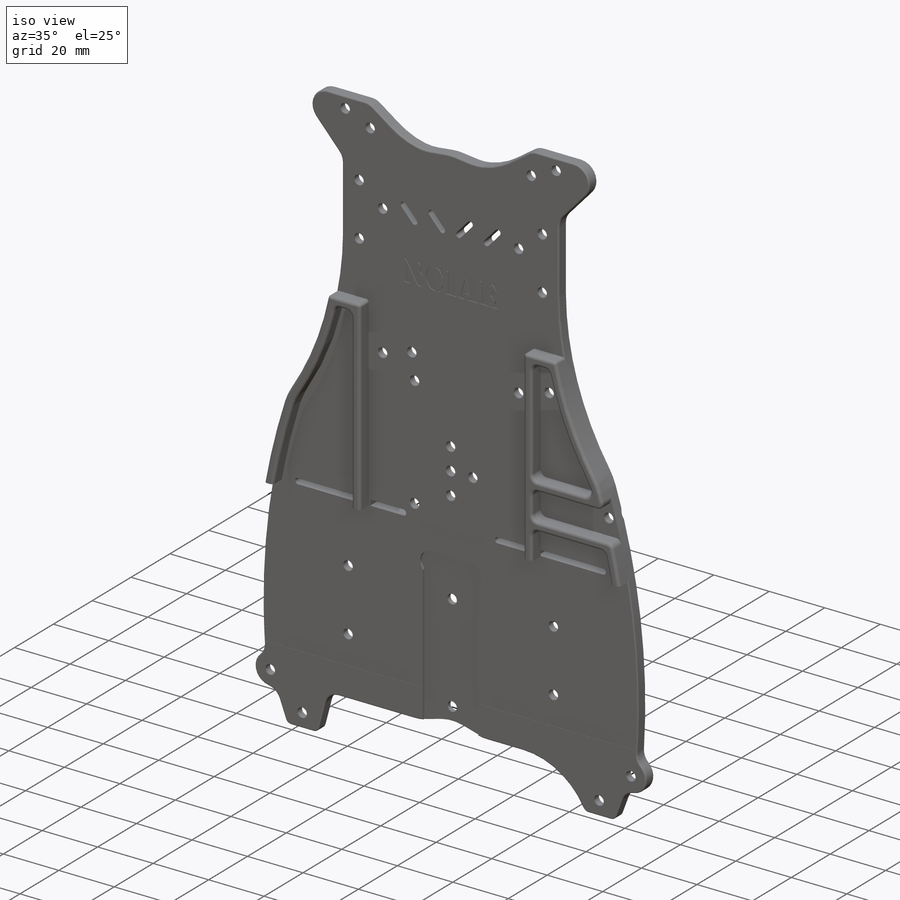
[diagram: iso view]
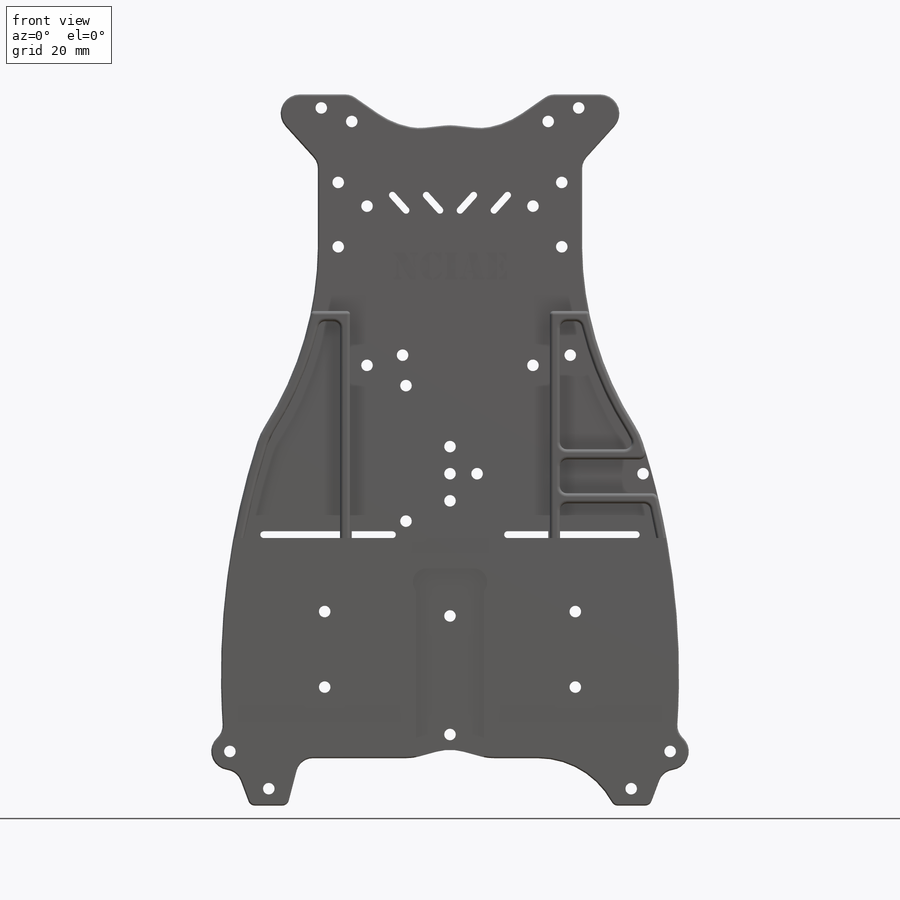
[diagram: front view]
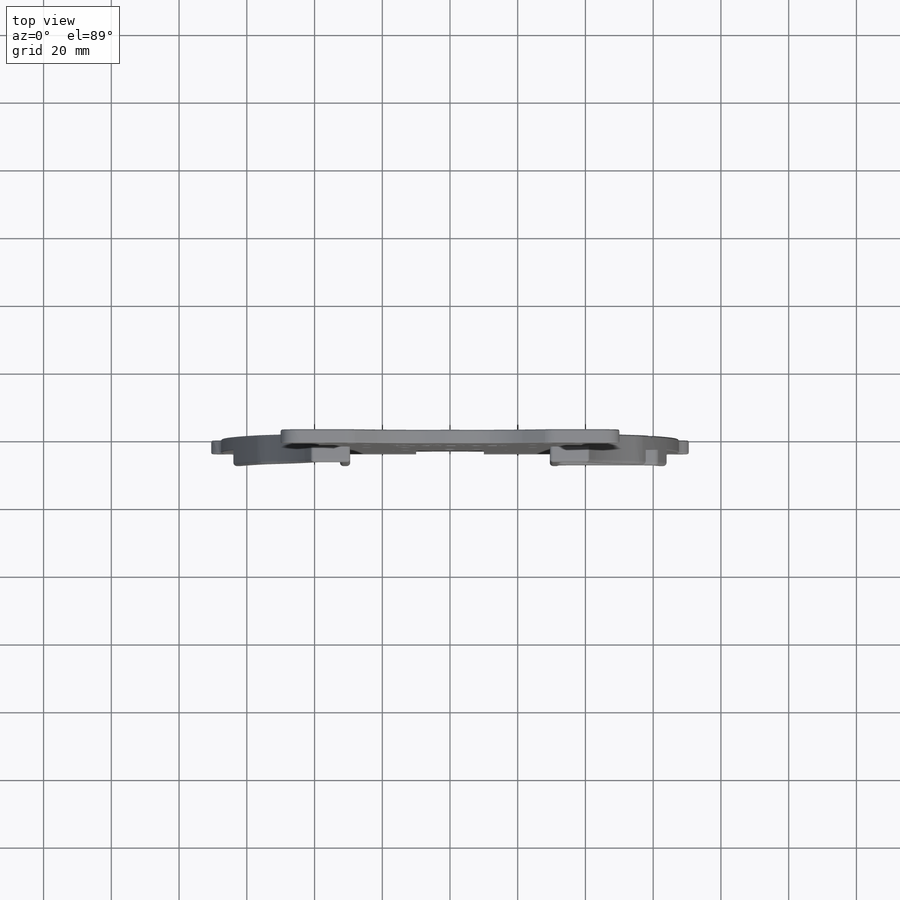
[diagram: top view]
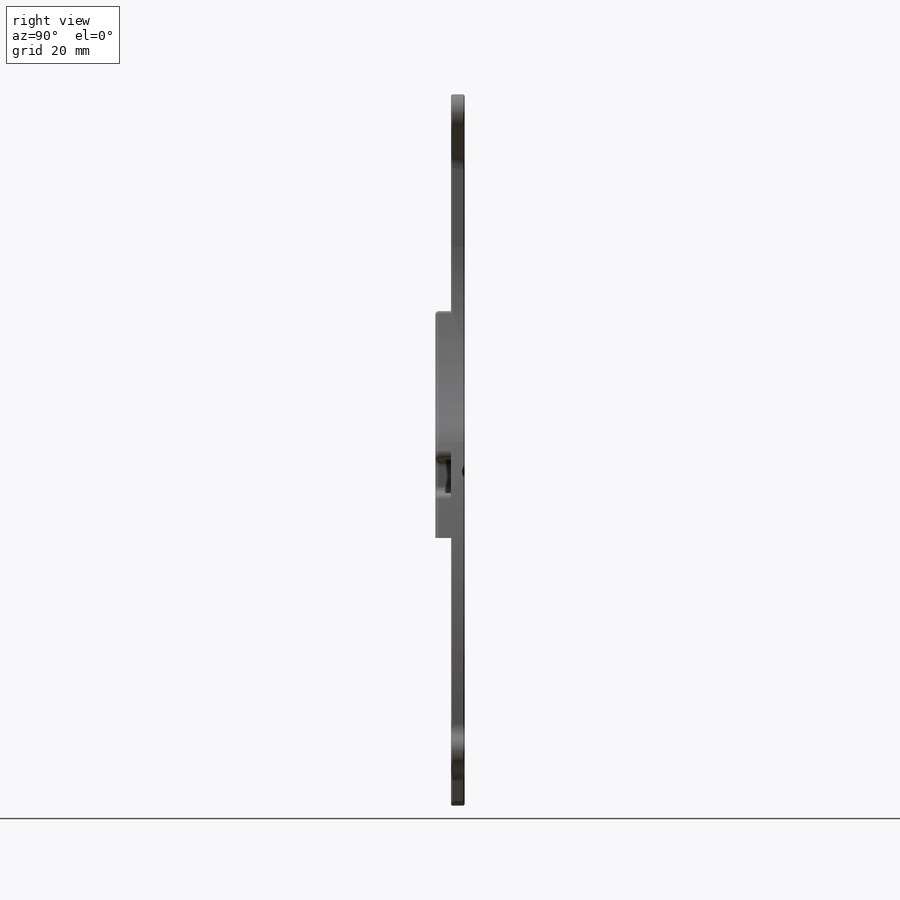
[diagram: right view]
SOLIDWORKS PART (.sldprt)
format: sldprt  version: not decoded by parser v0  size: 1,609,728 bytes
history: native  units: mm
features: fillet x14, sketch x7, plane x3, cut_extrude x3, extrude x2, material x1, hole x1 (+10 scaffold rows collapsed)
feature tree (41):
  scaffold x10  (default folders/planes/origin — collapsed)
  material  "环氧树脂,未充填"
  plane  "前视基准面"
  plane  "上视基准面"
  plane  "右视基准面"
  sketch  "草图1"  dims[c1.D6=~6.117959mm c1.D2=3.0mm c1.D12=~374.527145mm c1.D14=200.0mm c1.D15=100.0mm c1.D18=~5.699788mm c1.D22=3.0mm c1.D23=3.0mm c1.D26=3.0mm c1.D29=3.0mm c1.D30=3.0mm c2.D29=3.0mm c2.D31=3.0mm c2.D33=~4.554716mm c2.D34=3.0mm c2.D35=3.0mm c2.D36=3.0mm c2.D37=~1.61247mm c2.D40=3.0mm c2.D41=3.0mm c2.D43=3.0mm c2.D45=3.0mm c2.D46=1.0mm c2.D52=3.0mm c2.D53=3.0mm c2.D54=3.0mm c2.D56=3.0mm c2.D57=3.0mm c2.D63=1.0mm c2.D70=3.0mm c2.D1=210.0mm c2.D2=67.8mm c2.D3=22.0mm c2.D4=14.0mm c3.D3=48.0mm c3.D5=11.0mm c3.D6=65.0mm c3.D7=16.0mm c3.D9=165.0mm c3.D10=25.0mm c3.D11=39.0mm c3.D12=56.0mm c3.D13=110.0mm c3.D14=~10.992423mm c3.D16=10.0mm c3.D17=1.0mm c3.D18=9.0mm c3.D19=15.0mm c3.D20=15.0mm c3.D21=50.0mm c3.D24=22.3mm c3.D25=35.0mm c3.D26=37.0mm c3.D27=11.0mm c3.D28=3.0mm c3.D31=21.0mm c3.D32=35.0mm c3.D33=34.0mm c3.D34=8.0mm c3.D35=8.0mm c3.D36=8.0mm c3.D37=38.0mm c3.D38=4.0mm c3.D39=8.0mm c3.D40=29.0mm c3.D41=33.0mm c3.D42=26.0mm c3.D43=24.5mm c3.D44=~24.065933mm c4.D44=90.0deg c5.D44=33.0mm c5.D45=19.0mm c5.D46=~5.031382mm c5.D47=6.0mm c5.D48=6.0mm c6.D48=42.0deg c6.D49=5.0mm c6.D50=32.0mm c6.D52=13.0mm c6.D53=1.0mm c6.D54=10.0mm c6.D55=77.0mm c6.D56=3.0mm c6.D57=6.0mm c6.D58=35.5mm c6.D59=24.5mm c6.D60=57.0mm c6.D61=98.0mm c6.D62=79.0mm c6.D63=~28.504323mm c6.D64=38.0mm c6.D65=80.0mm c6.D66=36.0mm c6.D67=12.0mm c7.D62=13.0mm c7.D69=6.0mm c7.D71=5.0mm c7.D72=~5.880247mm c8.D72=~96.694855deg c9.D72=5.5mm c9.D73=~6.063317mm c10.D73=~20.731098deg c11.D73=~7.081214mm c11.D72=53.5mm c12.D73=~135.994544mm c12.D14=135.2mm c13.D73=16.0mm c13.D74=24.0mm c13.D54=24.5mm c14.D74=40.0mm c14.D8=4.0mm c14.D68=2.5mm c14.D51=2.0]
  extrude  "凸台-拉伸1"  Depth=4mm
  fillet  "圆角2"  Radius=5mm
  fillet  "圆角3"  Radius=2mm
  fillet  "圆角4"  Radius=20mm
  sketch  "草图2"  dims[c1.D1=28.0mm c1.D2=12.5mm c1.D3=146.0mm c1.D4=45.0mm c1.D5=7.0mm c1.D6=45.0mm c1.D9=43.8mm c1.D10=10.0mm c1.D13=33.2mm c2.D4=31.0mm c2.D13=46.0mm c2.D14=~10.522112mm c2.D5=11.5mm c2.D7=3.0mm c2.D8=2.5mm c2.D11=3.0mm c2.D12=3.0mm]
  extrude  "凸台-拉伸2"  Depth=4.6mm
  fillet  "圆角6"  Radius=1mm
  fillet  "圆角7"  Radius=2mm
  fillet  "圆角8"  Radius=2mm
  fillet  "圆角9"  Radius=25mm
  fillet  "圆角10"  Radius=15mm
  fillet  "圆角11"  Radius=25mm
  fillet  "圆角12"  Radius=15mm
  fillet  "圆角13"  Radius=1mm
  sketch  "草图4"  dims[c1.D2=20.0mm c1.D1=0.0mm c2.D2=0.0mm c2.D3=0.0mm c2.D4=0.0mm c2.D5=0.0mm c2.D6=0.0mm c2.D7=0.0mm c2.D8=0.0mm c2.D9=0.0mm c2.D10=0.0mm c2.D11=0.0mm c2.D12=0.0mm c2.D13=0.0mm c2.D14=0.0mm c2.D15=0.0mm c2.D16=0.0mm]
  cut_extrude  "切除-拉伸1"  Depth=0.8mm
  hole  "打孔尺寸(%根据)开槽半沉头木螺钉的类型1"  [1 undecoded]
  sketch  "草图7"
  sketch  "草图6"  dims[hole-wizard template sketch: 54 standard entries collapsed; hole parameters kept: c17.通孔孔直径=3.4mm c17.通孔孔深度=8.6mm c17.近端锥形沉头孔直径=6.6mm c17.D4=~3.666174mm c17.近端锥形沉头孔角度=90.0deg]
  fillet  "圆角14"  Radius=0.5mm
  sketch  "草图8"
  cut_extrude  "切除-拉伸2"  Depth=0.2mm
  fillet  "圆角15"  Radius=1mm
  sketch  "草图9"  dims[D1=170.0mm]
  cut_extrude  "切除-拉伸10"  Depth=4.65mm
  fillet  "圆角16"  Radius=0.4mm
decode coverage: 24 of 27 modeling features carry decoded parameters
note: ~ marks probable driven/reference dimensions
note: 1 parameter value undecoded
note: suppression state not decoded; provenance and decode notes live in map.json
